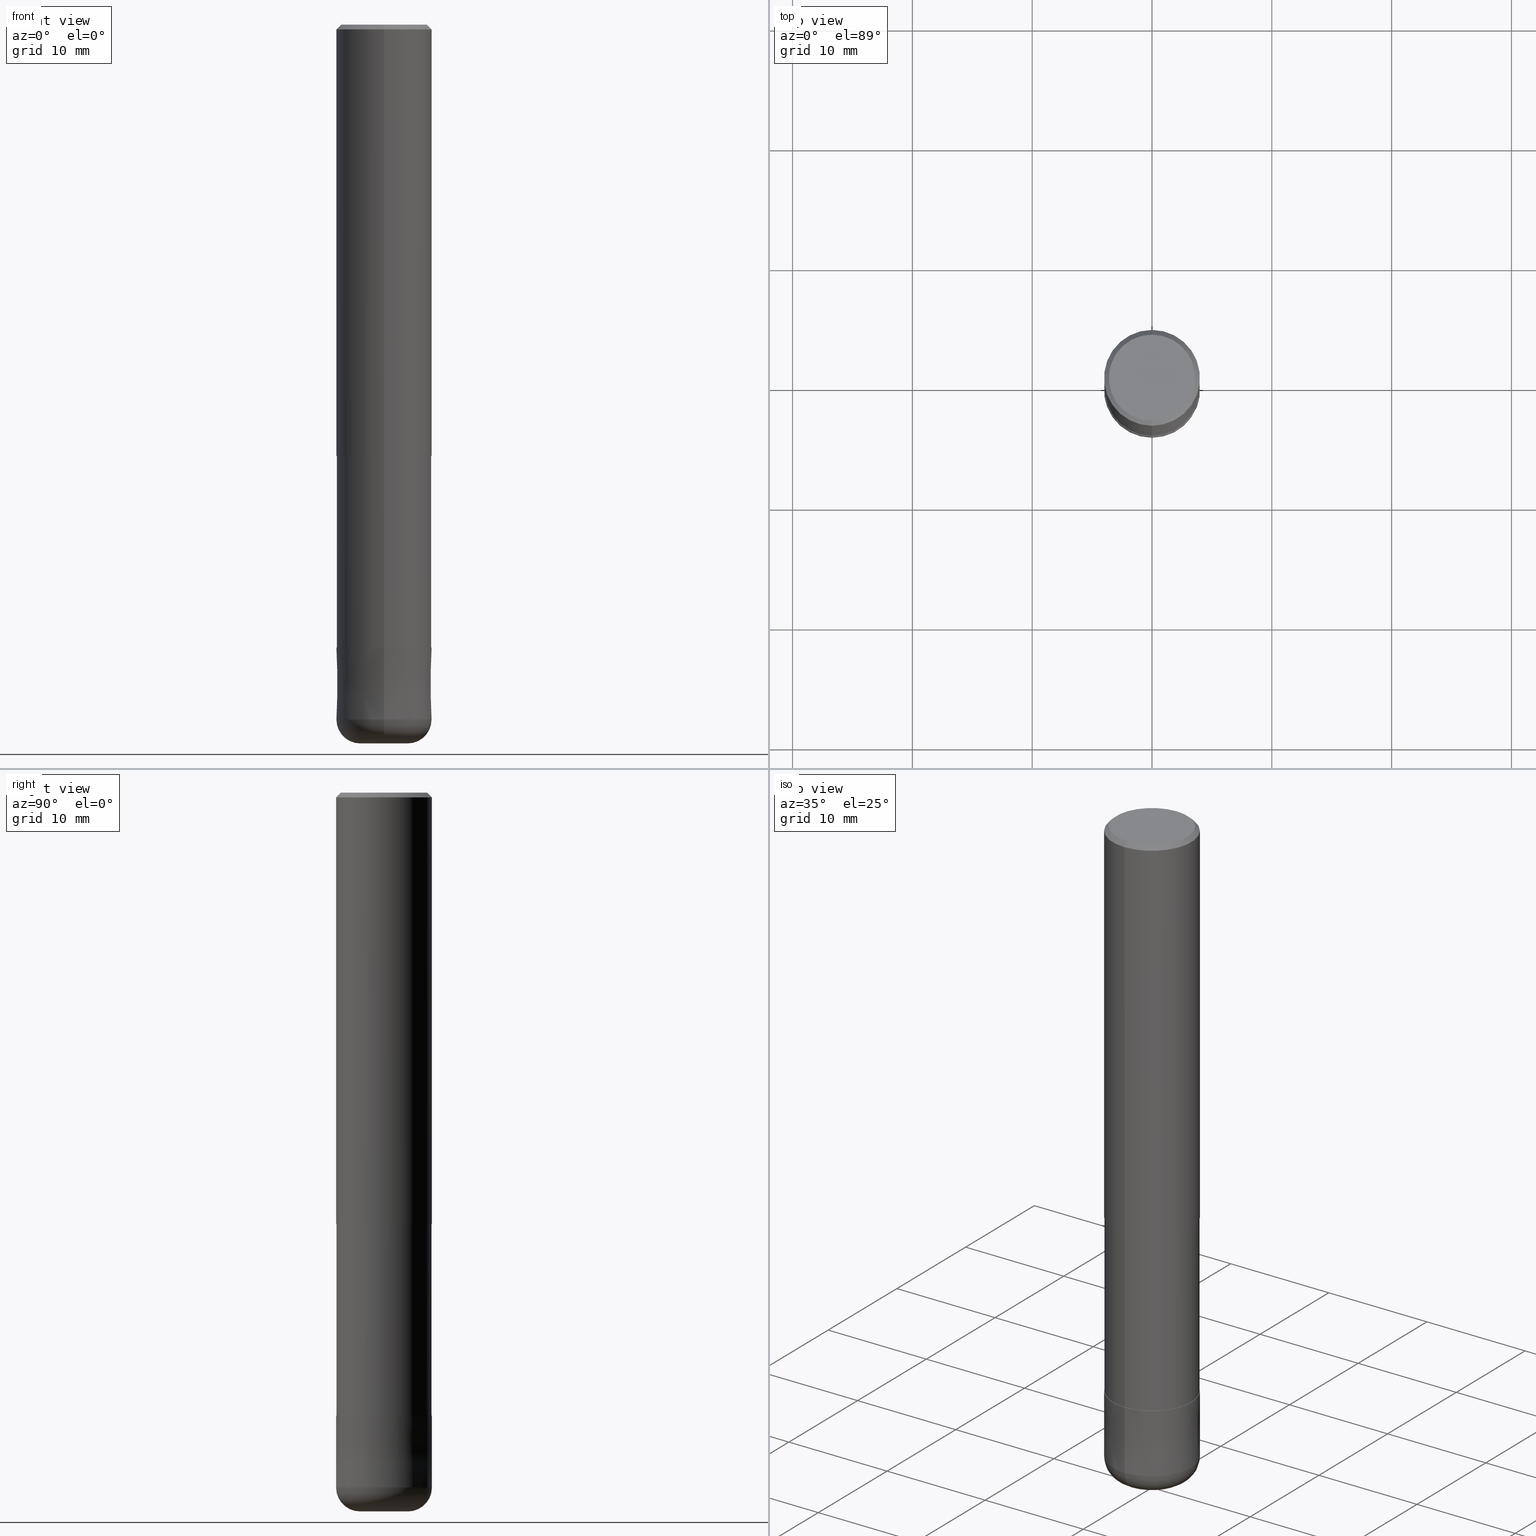
[diagram: canonical four-view strip — front | top / right | iso, engineering-drawing reading convention]
A machine part, canonical four-view strip (front | top / right | iso — engineering-drawing reading convention). The complete STEP part file that produces these views, byte-faithful:
ISO-10303-21;
HEADER;
FILE_DESCRIPTION(('no description'),'unknown implementation level');
FILE_NAME('HRRS4080-20-24S-Huellk.stp','  ',('CIMSOURCE GmbH'),('CADClick - KiM GmbH - www.kimweb.de'),'unknown preprocess','ACIS','unknown authorization');
FILE_SCHEMA(('automotive_design'));
ENDSEC;
DATA;
#1=MECHANICAL_DESIGN_GEOMETRIC_PRESENTATION_REPRESENTATION(' ',(#14,#15,#16,#17,#18,#19,#20,#21,#22,#23,#24,#25,#26,#27,#28,#29,#30,#31,#32,#33,#34,#35,#36,#37,#38,#39,#40,#41,#42,#43,#44,#45,#46,#47,#48,#49,#50,#51,#52,#53,#54,#55,#56,#57,#58,#59,#60,#61,#62,#63,#64,#65,#66,#67,#68,#69,#70,#71,#72),#10);
#2=PRODUCT_DEFINITION_CONTEXT('',#73,'design');
#3=APPLICATION_PROTOCOL_DEFINITION('INTERNATIONAL STANDARD','automotive_design',1994,#73);
#4=PRODUCT_CATEGORY_RELATIONSHIP('NONE','NONE',#74,#75);
#5=SHAPE_DEFINITION_REPRESENTATION(#76,#77);
#6=PRODUCT_DEFINITION_CONTEXT('',#78,'design');
#7=APPLICATION_PROTOCOL_DEFINITION('INTERNATIONAL STANDARD','automotive_design',1994,#78);
#8=PRODUCT_CATEGORY_RELATIONSHIP('NONE','NONE',#79,#80);
#9=SHAPE_DEFINITION_REPRESENTATION(#81,#82);
#10= (GEOMETRIC_REPRESENTATION_CONTEXT(3)GLOBAL_UNCERTAINTY_ASSIGNED_CONTEXT((#85))GLOBAL_UNIT_ASSIGNED_CONTEXT((#87,#88,#89))REPRESENTATION_CONTEXT('NONE','WORKSPACE'));
#14=STYLED_ITEM('',(#91),#92);
#15=STYLED_ITEM('',(#93),#94);
#16=STYLED_ITEM('',(#95),#96);
#17=STYLED_ITEM('',(#97),#98);
#18=STYLED_ITEM('',(#99),#100);
#19=STYLED_ITEM('',(#101),#102);
#20=STYLED_ITEM('',(#103),#104);
#21=STYLED_ITEM('',(#105),#106);
#22=STYLED_ITEM('',(#107),#108);
#23=STYLED_ITEM('',(#109),#110);
#24=STYLED_ITEM('',(#111),#112);
#25=STYLED_ITEM('',(#113),#114);
#26=STYLED_ITEM('',(#115),#116);
#27=STYLED_ITEM('',(#117),#118);
#28=STYLED_ITEM('',(#119),#120);
#29=STYLED_ITEM('',(#121),#122);
#30=STYLED_ITEM('',(#123),#124);
#31=STYLED_ITEM('',(#125),#126);
#32=STYLED_ITEM('',(#127),#128);
#33=STYLED_ITEM('',(#129),#130);
#34=STYLED_ITEM('',(#131),#132);
#35=STYLED_ITEM('',(#133),#134);
#36=STYLED_ITEM('',(#135),#136);
#37=STYLED_ITEM('',(#137),#138);
#38=STYLED_ITEM('',(#139),#140);
#39=STYLED_ITEM('',(#141),#142);
#40=STYLED_ITEM('',(#143),#144);
#41=STYLED_ITEM('',(#145),#146);
#42=STYLED_ITEM('',(#147),#148);
#43=STYLED_ITEM('',(#149),#150);
#44=STYLED_ITEM('',(#151),#152);
#45=STYLED_ITEM('',(#153),#154);
#46=STYLED_ITEM('',(#155),#156);
#47=STYLED_ITEM('',(#157),#158);
#48=STYLED_ITEM('',(#159),#160);
#49=STYLED_ITEM('',(#161),#162);
#50=STYLED_ITEM('',(#163),#164);
#51=STYLED_ITEM('',(#165),#166);
#52=STYLED_ITEM('',(#167),#168);
#53=STYLED_ITEM('',(#169),#170);
#54=STYLED_ITEM('',(#171),#172);
#55=STYLED_ITEM('',(#173),#174);
#56=STYLED_ITEM('',(#175),#176);
#57=STYLED_ITEM('',(#177),#178);
#58=STYLED_ITEM('',(#179),#180);
#59=STYLED_ITEM('',(#181),#182);
#60=STYLED_ITEM('',(#183),#184);
#61=STYLED_ITEM('',(#185),#186);
#62=STYLED_ITEM('',(#187),#188);
#63=STYLED_ITEM('',(#189),#190);
#64=STYLED_ITEM('',(#191),#192);
#65=STYLED_ITEM('',(#193),#194);
#66=STYLED_ITEM('',(#195),#196);
#67=STYLED_ITEM('',(#197),#198);
#68=STYLED_ITEM('',(#199),#200);
#69=STYLED_ITEM('',(#201),#202);
#70=STYLED_ITEM('',(#203),#204);
#71=STYLED_ITEM('',(#205),#206);
#72=STYLED_ITEM('',(#207),#208);
#73=APPLICATION_CONTEXT(' ');
#74=PRODUCT_CATEGORY('part','NONE');
#75=PRODUCT_RELATED_PRODUCT_CATEGORY('detail',' ',(#209));
#76=PRODUCT_DEFINITION_SHAPE('NONE','NONE',#210);
#77=ADVANCED_BREP_SHAPE_REPRESENTATION('1',(#172,#211),#10);
#78=APPLICATION_CONTEXT(' ');
#79=PRODUCT_CATEGORY('part','NONE');
#80=PRODUCT_RELATED_PRODUCT_CATEGORY('detail',' ',(#212));
#81=PRODUCT_DEFINITION_SHAPE('NONE','NONE',#213);
#82=ADVANCED_BREP_SHAPE_REPRESENTATION('2',(#208,#214),#10);
#85=UNCERTAINTY_MEASURE_WITH_UNIT(LENGTH_MEASURE(1.0E-006),#87,'','');
#87= (CONVERSION_BASED_UNIT('MILLIMETRE',#217)LENGTH_UNIT()NAMED_UNIT(#220));
#88= (NAMED_UNIT(#222)PLANE_ANGLE_UNIT()SI_UNIT($,.RADIAN.));
#89= (NAMED_UNIT(#222)SOLID_ANGLE_UNIT()SI_UNIT($,.STERADIAN.));
#91=PRESENTATION_STYLE_ASSIGNMENT((#228));
#92=ADVANCED_FACE('',(#229),#230,.T.);
#93=PRESENTATION_STYLE_ASSIGNMENT((#231));
#94=EDGE_CURVE('',#202,#114,#232,.T.);
#95=PRESENTATION_STYLE_ASSIGNMENT((#233));
#96=ADVANCED_FACE('',(#234),#235,.T.);
#97=PRESENTATION_STYLE_ASSIGNMENT((#236));
#98=ADVANCED_FACE('',(#237,#238),#239,.T.);
#99=PRESENTATION_STYLE_ASSIGNMENT((#240));
#100=VERTEX_POINT('',#241);
#101=PRESENTATION_STYLE_ASSIGNMENT((#242));
#102=VERTEX_POINT('',#243);
#103=PRESENTATION_STYLE_ASSIGNMENT((#244));
#104=VERTEX_POINT('',#245);
#105=PRESENTATION_STYLE_ASSIGNMENT((#246));
#106=EDGE_CURVE('',#138,#150,#247,.T.);
#107=PRESENTATION_STYLE_ASSIGNMENT((#248));
#108=ADVANCED_FACE('',(#249),#250,.T.);
#109=PRESENTATION_STYLE_ASSIGNMENT((#251));
#110=VERTEX_POINT('',#252);
#111=PRESENTATION_STYLE_ASSIGNMENT((#253));
#112=VERTEX_POINT('',#254);
#113=PRESENTATION_STYLE_ASSIGNMENT((#255));
#114=VERTEX_POINT('',#256);
#115=PRESENTATION_STYLE_ASSIGNMENT((#257));
#116=EDGE_CURVE('',#168,#102,#258,.T.);
#117=PRESENTATION_STYLE_ASSIGNMENT((#259));
#118=VERTEX_POINT('',#260);
#119=PRESENTATION_STYLE_ASSIGNMENT((#261));
#120=EDGE_CURVE('',#206,#202,#262,.T.);
#121=PRESENTATION_STYLE_ASSIGNMENT((#263));
#122=ADVANCED_FACE('',(#264),#265,.T.);
#123=PRESENTATION_STYLE_ASSIGNMENT((#266));
#124=EDGE_CURVE('',#100,#164,#267,.T.);
#125=PRESENTATION_STYLE_ASSIGNMENT((#268));
#126=EDGE_CURVE('',#170,#110,#269,.T.);
#127=PRESENTATION_STYLE_ASSIGNMENT((#270));
#128=EDGE_CURVE('',#102,#168,#271,.T.);
#129=PRESENTATION_STYLE_ASSIGNMENT((#272));
#130=EDGE_CURVE('',#152,#118,#273,.T.);
#131=PRESENTATION_STYLE_ASSIGNMENT((#274));
#132=EDGE_CURVE('',#202,#206,#275,.T.);
#133=PRESENTATION_STYLE_ASSIGNMENT((#276));
#134=ADVANCED_FACE('',(#277),#278,.T.);
#135=PRESENTATION_STYLE_ASSIGNMENT((#279));
#136=EDGE_CURVE('',#112,#104,#280,.T.);
#137=PRESENTATION_STYLE_ASSIGNMENT((#281));
#138=VERTEX_POINT('',#282);
#139=PRESENTATION_STYLE_ASSIGNMENT((#283));
#140=EDGE_CURVE('',#144,#114,#284,.T.);
#141=PRESENTATION_STYLE_ASSIGNMENT((#285));
#142=EDGE_CURVE('',#118,#110,#286,.T.);
#143=PRESENTATION_STYLE_ASSIGNMENT((#287));
#144=VERTEX_POINT('',#288);
#145=PRESENTATION_STYLE_ASSIGNMENT((#289));
#146=EDGE_CURVE('',#144,#206,#290,.T.);
#147=PRESENTATION_STYLE_ASSIGNMENT((#291));
#148=ADVANCED_FACE('',(#292),#293,.T.);
#149=PRESENTATION_STYLE_ASSIGNMENT((#294));
#150=VERTEX_POINT('',#295);
#151=PRESENTATION_STYLE_ASSIGNMENT((#296));
#152=VERTEX_POINT('',#297);
#153=PRESENTATION_STYLE_ASSIGNMENT((#298));
#154=EDGE_CURVE('',#110,#138,#299,.T.);
#155=PRESENTATION_STYLE_ASSIGNMENT((#300));
#156=EDGE_CURVE('',#104,#112,#301,.T.);
#157=PRESENTATION_STYLE_ASSIGNMENT((#302));
#158=ADVANCED_FACE('',(#303),#304,.T.);
#159=PRESENTATION_STYLE_ASSIGNMENT((#305));
#160=ADVANCED_FACE('',(#306),#307,.T.);
#161=PRESENTATION_STYLE_ASSIGNMENT((#308));
#162=EDGE_CURVE('',#150,#138,#309,.T.);
#163=PRESENTATION_STYLE_ASSIGNMENT((#310));
#164=VERTEX_POINT('',#311);
#165=PRESENTATION_STYLE_ASSIGNMENT((#312));
#166=ADVANCED_FACE('',(#313),#314,.T.);
#167=PRESENTATION_STYLE_ASSIGNMENT((#315));
#168=VERTEX_POINT('',#316);
#169=PRESENTATION_STYLE_ASSIGNMENT((#317));
#170=VERTEX_POINT('',#318);
#171=PRESENTATION_STYLE_ASSIGNMENT((#319));
#172=MANIFOLD_SOLID_BREP('1',#320);
#173=PRESENTATION_STYLE_ASSIGNMENT((#321));
#174=EDGE_CURVE('',#114,#144,#322,.T.);
#175=PRESENTATION_STYLE_ASSIGNMENT((#323));
#176=ADVANCED_FACE('',(#324),#325,.T.);
#177=PRESENTATION_STYLE_ASSIGNMENT((#326));
#178=EDGE_CURVE('',#110,#170,#327,.T.);
#179=PRESENTATION_STYLE_ASSIGNMENT((#328));
#180=EDGE_CURVE('',#170,#152,#329,.T.);
#181=PRESENTATION_STYLE_ASSIGNMENT((#330));
#182=EDGE_CURVE('',#100,#168,#331,.T.);
#183=PRESENTATION_STYLE_ASSIGNMENT((#332));
#184=ADVANCED_FACE('',(#333),#334,.T.);
#185=PRESENTATION_STYLE_ASSIGNMENT((#335));
#186=EDGE_CURVE('',#164,#100,#336,.T.);
#187=PRESENTATION_STYLE_ASSIGNMENT((#337));
#188=ADVANCED_FACE('',(#338),#339,.T.);
#189=PRESENTATION_STYLE_ASSIGNMENT((#340));
#190=EDGE_CURVE('',#104,#114,#341,.T.);
#191=PRESENTATION_STYLE_ASSIGNMENT((#342));
#192=ADVANCED_FACE('',(#343),#344,.T.);
#193=PRESENTATION_STYLE_ASSIGNMENT((#345));
#194=ADVANCED_FACE('',(#346),#347,.T.);
#195=PRESENTATION_STYLE_ASSIGNMENT((#348));
#196=EDGE_CURVE('',#102,#164,#349,.T.);
#197=PRESENTATION_STYLE_ASSIGNMENT((#350));
#198=EDGE_CURVE('',#150,#170,#351,.T.);
#199=PRESENTATION_STYLE_ASSIGNMENT((#352));
#200=EDGE_CURVE('',#118,#152,#353,.T.);
#201=PRESENTATION_STYLE_ASSIGNMENT((#354));
#202=VERTEX_POINT('',#355);
#203=PRESENTATION_STYLE_ASSIGNMENT((#356));
#204=EDGE_CURVE('',#144,#112,#357,.T.);
#205=PRESENTATION_STYLE_ASSIGNMENT((#358));
#206=VERTEX_POINT('',#359);
#207=PRESENTATION_STYLE_ASSIGNMENT((#360));
#208=MANIFOLD_SOLID_BREP('2',#361);
#209=PRODUCT('1','1','PART-1-DESC',(#362));
#210=PRODUCT_DEFINITION('NONE','NONE',#363,#2);
#211=AXIS2_PLACEMENT_3D('',#364,#365,#366);
#212=PRODUCT('2','2','PART-2-DESC',(#367));
#213=PRODUCT_DEFINITION('NONE','NONE',#368,#6);
#214=AXIS2_PLACEMENT_3D('',#369,#370,#371);
#217=LENGTH_MEASURE_WITH_UNIT(LENGTH_MEASURE(1.0),#372);
#220=DIMENSIONAL_EXPONENTS(1.0,0.0,0.0,0.0,0.0,0.0,0.0);
#222=DIMENSIONAL_EXPONENTS(0.0,0.0,0.0,0.0,0.0,0.0,0.0);
#228=SURFACE_STYLE_USAGE(.BOTH.,#373);
#229=FACE_OUTER_BOUND('',#374,.T.);
#230=CONICAL_SURFACE('',#375,3.8,0.78539816339745);
#231=CURVE_STYLE('',#376,POSITIVE_LENGTH_MEASURE(1.0E-006),#377);
#232=LINE('',#378,#379);
#233=SURFACE_STYLE_USAGE(.BOTH.,#380);
#234=FACE_OUTER_BOUND('',#381,.T.);
#235=CONICAL_SURFACE('',#382,3.99995,1.66666666651586E-005);
#236=SURFACE_STYLE_USAGE(.BOTH.,#383);
#237=FACE_OUTER_BOUND('',#384,.T.);
#238=FACE_BOUND('',#385,.T.);
#239=PLANE('',#386);
#240=POINT_STYLE(' ',#387,POSITIVE_LENGTH_MEASURE(1.0E-006),#388);
#241=CARTESIAN_POINT('',(0.0,3.95995,-36.0));
#242=POINT_STYLE(' ',#389,POSITIVE_LENGTH_MEASURE(1.0E-006),#390);
#243=CARTESIAN_POINT('',(4.84937993081892E-016,-3.95995,-52.0));
#244=POINT_STYLE(' ',#391,POSITIVE_LENGTH_MEASURE(1.0E-006),#392);
#245=CARTESIAN_POINT('',(0.0,2.0,-60.0));
#246=CURVE_STYLE('',#393,POSITIVE_LENGTH_MEASURE(1.0E-006),#394);
#247=CIRCLE('',#395,3.6);
#248=SURFACE_STYLE_USAGE(.BOTH.,#396);
#249=FACE_OUTER_BOUND('',#397,.T.);
#250=CYLINDRICAL_SURFACE('',#398,3.95995);
#251=POINT_STYLE(' ',#399,POSITIVE_LENGTH_MEASURE(1.0E-006),#400);
#252=CARTESIAN_POINT('',(4.89842541528951E-016,-4.0,-0.399999999999999));
#253=POINT_STYLE(' ',#401,POSITIVE_LENGTH_MEASURE(1.0E-006),#402);
#254=CARTESIAN_POINT('',(2.44921270764475E-016,-2.0,-60.0));
#255=POINT_STYLE(' ',#403,POSITIVE_LENGTH_MEASURE(1.0E-006),#404);
#256=CARTESIAN_POINT('',(0.0,4.0,-58.0));
#257=CURVE_STYLE('',#405,POSITIVE_LENGTH_MEASURE(1.0E-006),#406);
#258=CIRCLE('',#407,3.95995);
#259=POINT_STYLE(' ',#408,POSITIVE_LENGTH_MEASURE(1.0E-006),#409);
#260=CARTESIAN_POINT('',(4.89842541528951E-016,-4.0,-36.0));
#261=CURVE_STYLE('',#410,POSITIVE_LENGTH_MEASURE(1.0E-006),#411);
#262=CIRCLE('',#412,3.9999);
#263=SURFACE_STYLE_USAGE(.BOTH.,#413);
#264=FACE_OUTER_BOUND('',#414,.T.);
#265=TOROIDAL_SURFACE('',#415,2.0,2.0);
#266=CURVE_STYLE('',#416,POSITIVE_LENGTH_MEASURE(1.0E-006),#417);
#267=CIRCLE('',#418,3.95995);
#268=CURVE_STYLE('',#419,POSITIVE_LENGTH_MEASURE(1.0E-006),#420);
#269=CIRCLE('',#421,4.0);
#270=CURVE_STYLE('',#422,POSITIVE_LENGTH_MEASURE(1.0E-006),#423);
#271=CIRCLE('',#424,3.95995);
#272=CURVE_STYLE('',#425,POSITIVE_LENGTH_MEASURE(1.0E-006),#426);
#273=CIRCLE('',#427,4.0);
#274=CURVE_STYLE('',#428,POSITIVE_LENGTH_MEASURE(1.0E-006),#429);
#275=CIRCLE('',#430,3.9999);
#276=SURFACE_STYLE_USAGE(.BOTH.,#431);
#277=FACE_OUTER_BOUND('',#432,.T.);
#278=CYLINDRICAL_SURFACE('',#433,4.0);
#279=CURVE_STYLE('',#434,POSITIVE_LENGTH_MEASURE(1.0E-006),#435);
#280=CIRCLE('',#436,2.0);
#281=POINT_STYLE(' ',#437,POSITIVE_LENGTH_MEASURE(1.0E-006),#438);
#282=CARTESIAN_POINT('',(4.40858287376056E-016,-3.6,0.0));
#283=CURVE_STYLE('',#439,POSITIVE_LENGTH_MEASURE(1.0E-006),#440);
#284=CIRCLE('',#441,4.0);
#285=CURVE_STYLE('',#442,POSITIVE_LENGTH_MEASURE(1.0E-006),#443);
#286=LINE('',#444,#445);
#287=POINT_STYLE(' ',#446,POSITIVE_LENGTH_MEASURE(1.0E-006),#447);
#288=CARTESIAN_POINT('',(4.89842541528951E-016,-4.0,-58.0));
#289=CURVE_STYLE('',#448,POSITIVE_LENGTH_MEASURE(1.0E-006),#449);
#290=LINE('',#450,#451);
#291=SURFACE_STYLE_USAGE(.BOTH.,#452);
#292=FACE_OUTER_BOUND('',#453,.T.);
#293=PLANE('',#454);
#294=POINT_STYLE(' ',#455,POSITIVE_LENGTH_MEASURE(1.0E-006),#456);
#295=CARTESIAN_POINT('',(0.0,3.6,0.0));
#296=POINT_STYLE(' ',#457,POSITIVE_LENGTH_MEASURE(1.0E-006),#458);
#297=CARTESIAN_POINT('',(0.0,4.0,-36.0));
#298=CURVE_STYLE('',#459,POSITIVE_LENGTH_MEASURE(1.0E-006),#460);
#299=LINE('',#461,#462);
#300=CURVE_STYLE('',#463,POSITIVE_LENGTH_MEASURE(1.0E-006),#464);
#301=CIRCLE('',#465,2.0);
#302=SURFACE_STYLE_USAGE(.BOTH.,#466);
#303=FACE_OUTER_BOUND('',#467,.T.);
#304=CYLINDRICAL_SURFACE('',#468,3.95995);
#305=SURFACE_STYLE_USAGE(.BOTH.,#469);
#306=FACE_OUTER_BOUND('',#470,.T.);
#307=CYLINDRICAL_SURFACE('',#471,4.0);
#308=CURVE_STYLE('',#472,POSITIVE_LENGTH_MEASURE(1.0E-006),#473);
#309=CIRCLE('',#474,3.6);
#310=POINT_STYLE(' ',#475,POSITIVE_LENGTH_MEASURE(1.0E-006),#476);
#311=CARTESIAN_POINT('',(4.84937993081892E-016,-3.95995,-36.0));
#312=SURFACE_STYLE_USAGE(.BOTH.,#477);
#313=FACE_OUTER_BOUND('',#478,.T.);
#314=TOROIDAL_SURFACE('',#479,2.0,2.0);
#315=POINT_STYLE(' ',#480,POSITIVE_LENGTH_MEASURE(1.0E-006),#481);
#316=CARTESIAN_POINT('',(0.0,3.95995,-52.0));
#317=POINT_STYLE(' ',#482,POSITIVE_LENGTH_MEASURE(1.0E-006),#483);
#318=CARTESIAN_POINT('',(0.0,4.0,-0.399999999999999));
#319=SURFACE_STYLE_USAGE(.BOTH.,#484);
#320=CLOSED_SHELL('',(#108,#134,#184,#98,#192,#92,#160,#158,#194));
#321=CURVE_STYLE('',#485,POSITIVE_LENGTH_MEASURE(1.0E-006),#486);
#322=CIRCLE('',#487,4.0);
#323=SURFACE_STYLE_USAGE(.BOTH.,#488);
#324=FACE_OUTER_BOUND('',#489,.T.);
#325=CONICAL_SURFACE('',#490,3.99995,1.66666666651586E-005);
#326=CURVE_STYLE('',#491,POSITIVE_LENGTH_MEASURE(1.0E-006),#492);
#327=CIRCLE('',#493,4.0);
#328=CURVE_STYLE('',#494,POSITIVE_LENGTH_MEASURE(1.0E-006),#495);
#329=LINE('',#496,#497);
#330=CURVE_STYLE('',#498,POSITIVE_LENGTH_MEASURE(1.0E-006),#499);
#331=LINE('',#500,#501);
#332=SURFACE_STYLE_USAGE(.BOTH.,#502);
#333=FACE_OUTER_BOUND('',#503,.T.);
#334=CONICAL_SURFACE('',#504,3.8,0.78539816339745);
#335=CURVE_STYLE('',#505,POSITIVE_LENGTH_MEASURE(1.0E-006),#506);
#336=CIRCLE('',#507,3.95995);
#337=SURFACE_STYLE_USAGE(.BOTH.,#508);
#338=FACE_OUTER_BOUND('',#509,.T.);
#339=PLANE('',#510);
#340=CURVE_STYLE('',#511,POSITIVE_LENGTH_MEASURE(1.0E-006),#512);
#341=CIRCLE('',#513,2.0);
#342=SURFACE_STYLE_USAGE(.BOTH.,#514);
#343=FACE_OUTER_BOUND('',#515,.T.);
#344=PLANE('',#516);
#345=SURFACE_STYLE_USAGE(.BOTH.,#517);
#346=FACE_OUTER_BOUND('',#518,.T.);
#347=PLANE('',#519);
#348=CURVE_STYLE('',#520,POSITIVE_LENGTH_MEASURE(1.0E-006),#521);
#349=LINE('',#522,#523);
#350=CURVE_STYLE('',#524,POSITIVE_LENGTH_MEASURE(1.0E-006),#525);
#351=LINE('',#526,#527);
#352=CURVE_STYLE('',#528,POSITIVE_LENGTH_MEASURE(1.0E-006),#529);
#353=CIRCLE('',#530,4.0);
#354=POINT_STYLE(' ',#531,POSITIVE_LENGTH_MEASURE(1.0E-006),#532);
#355=CARTESIAN_POINT('',(0.0,3.9999,-52.0));
#356=CURVE_STYLE('',#533,POSITIVE_LENGTH_MEASURE(1.0E-006),#534);
#357=CIRCLE('',#535,2.0);
#358=POINT_STYLE(' ',#536,POSITIVE_LENGTH_MEASURE(1.0E-006),#537);
#359=CARTESIAN_POINT('',(4.89830295465413E-016,-3.9999,-52.0));
#360=SURFACE_STYLE_USAGE(.BOTH.,#538);
#361=CLOSED_SHELL('',(#166,#176,#148,#96,#122,#188));
#362=PRODUCT_CONTEXT('',#73,'mechanical');
#363=PRODUCT_DEFINITION_FORMATION_WITH_SPECIFIED_SOURCE(' ','NONE',#209,.NOT_KNOWN.);
#364=CARTESIAN_POINT('',(0.0,0.0,0.0));
#365=DIRECTION('',(0.0,0.0,1.0));
#366=DIRECTION('',(1.0,0.0,0.0));
#367=PRODUCT_CONTEXT('',#78,'mechanical');
#368=PRODUCT_DEFINITION_FORMATION_WITH_SPECIFIED_SOURCE(' ','NONE',#212,.NOT_KNOWN.);
#369=CARTESIAN_POINT('',(0.0,0.0,0.0));
#370=DIRECTION('',(0.0,0.0,1.0));
#371=DIRECTION('',(1.0,0.0,0.0));
#372= (NAMED_UNIT(#220)LENGTH_UNIT()SI_UNIT(.MILLI.,.METRE.));
#373=SURFACE_SIDE_STYLE('',(#540));
#374=EDGE_LOOP('',(#541,#542,#543,#544));
#375=AXIS2_PLACEMENT_3D('',#545,#546,#547);
#376=DRAUGHTING_PRE_DEFINED_CURVE_FONT('continuous');
#377=COLOUR_RGB('',0.800000011920929,0.800000011920929,0.800000011920929);
#378=CARTESIAN_POINT('',(-4.89836418497182E-016,3.99995,-55.0));
#379=VECTOR('',#548,1.0);
#380=SURFACE_SIDE_STYLE('',(#549));
#381=EDGE_LOOP('',(#550,#551,#552,#553));
#382=AXIS2_PLACEMENT_3D('',#554,#555,#556);
#383=SURFACE_SIDE_STYLE('',(#557));
#384=EDGE_LOOP('',(#558,#559));
#385=EDGE_LOOP('',(#560,#561));
#386=AXIS2_PLACEMENT_3D('',#562,#563,#564);
#387=PRE_DEFINED_MARKER('');
#388=COLOUR_RGB('',0.498039215803146,0.498039215803146,0.498039215803146);
#389=PRE_DEFINED_MARKER('');
#390=COLOUR_RGB('',0.498039215803146,0.498039215803146,0.498039215803146);
#391=PRE_DEFINED_MARKER('');
#392=COLOUR_RGB('',0.800000011920929,0.800000011920929,0.800000011920929);
#393=DRAUGHTING_PRE_DEFINED_CURVE_FONT('continuous');
#394=COLOUR_RGB('',0.498039215803146,0.498039215803146,0.498039215803146);
#395=AXIS2_PLACEMENT_3D('',#565,#566,#567);
#396=SURFACE_SIDE_STYLE('',(#568));
#397=EDGE_LOOP('',(#569,#570,#571,#572));
#398=AXIS2_PLACEMENT_3D('',#573,#574,#575);
#399=PRE_DEFINED_MARKER('');
#400=COLOUR_RGB('',0.498039215803146,0.498039215803146,0.498039215803146);
#401=PRE_DEFINED_MARKER('');
#402=COLOUR_RGB('',0.800000011920929,0.800000011920929,0.800000011920929);
#403=PRE_DEFINED_MARKER('');
#404=COLOUR_RGB('',0.800000011920929,0.800000011920929,0.800000011920929);
#405=DRAUGHTING_PRE_DEFINED_CURVE_FONT('continuous');
#406=COLOUR_RGB('',0.498039215803146,0.498039215803146,0.498039215803146);
#407=AXIS2_PLACEMENT_3D('',#576,#577,#578);
#408=PRE_DEFINED_MARKER('');
#409=COLOUR_RGB('',0.498039215803146,0.498039215803146,0.498039215803146);
#410=DRAUGHTING_PRE_DEFINED_CURVE_FONT('continuous');
#411=COLOUR_RGB('',0.800000011920929,0.800000011920929,0.800000011920929);
#412=AXIS2_PLACEMENT_3D('',#579,#580,#581);
#413=SURFACE_SIDE_STYLE('',(#582));
#414=EDGE_LOOP('',(#583,#584,#585,#586));
#415=AXIS2_PLACEMENT_3D('',#587,#588,#589);
#416=DRAUGHTING_PRE_DEFINED_CURVE_FONT('continuous');
#417=COLOUR_RGB('',0.498039215803146,0.498039215803146,0.498039215803146);
#418=AXIS2_PLACEMENT_3D('',#590,#591,#592);
#419=DRAUGHTING_PRE_DEFINED_CURVE_FONT('continuous');
#420=COLOUR_RGB('',0.498039215803146,0.498039215803146,0.498039215803146);
#421=AXIS2_PLACEMENT_3D('',#593,#594,#595);
#422=DRAUGHTING_PRE_DEFINED_CURVE_FONT('continuous');
#423=COLOUR_RGB('',0.498039215803146,0.498039215803146,0.498039215803146);
#424=AXIS2_PLACEMENT_3D('',#596,#597,#598);
#425=DRAUGHTING_PRE_DEFINED_CURVE_FONT('continuous');
#426=COLOUR_RGB('',0.498039215803146,0.498039215803146,0.498039215803146);
#427=AXIS2_PLACEMENT_3D('',#599,#600,#601);
#428=DRAUGHTING_PRE_DEFINED_CURVE_FONT('continuous');
#429=COLOUR_RGB('',0.800000011920929,0.800000011920929,0.800000011920929);
#430=AXIS2_PLACEMENT_3D('',#602,#603,#604);
#431=SURFACE_SIDE_STYLE('',(#605));
#432=EDGE_LOOP('',(#606,#607,#608,#609));
#433=AXIS2_PLACEMENT_3D('',#610,#611,#612);
#434=DRAUGHTING_PRE_DEFINED_CURVE_FONT('continuous');
#435=COLOUR_RGB('',0.800000011920929,0.800000011920929,0.800000011920929);
#436=AXIS2_PLACEMENT_3D('',#613,#614,#615);
#437=PRE_DEFINED_MARKER('');
#438=COLOUR_RGB('',0.498039215803146,0.498039215803146,0.498039215803146);
#439=DRAUGHTING_PRE_DEFINED_CURVE_FONT('continuous');
#440=COLOUR_RGB('',0.800000011920929,0.800000011920929,0.800000011920929);
#441=AXIS2_PLACEMENT_3D('',#616,#617,#618);
#442=DRAUGHTING_PRE_DEFINED_CURVE_FONT('continuous');
#443=COLOUR_RGB('',0.498039215803146,0.498039215803146,0.498039215803146);
#444=CARTESIAN_POINT('',(4.89842541528951E-016,-4.0,-18.2));
#445=VECTOR('',#619,1.0);
#446=PRE_DEFINED_MARKER('');
#447=COLOUR_RGB('',0.800000011920929,0.800000011920929,0.800000011920929);
#448=DRAUGHTING_PRE_DEFINED_CURVE_FONT('continuous');
#449=COLOUR_RGB('',0.800000011920929,0.800000011920929,0.800000011920929);
#450=CARTESIAN_POINT('',(4.89836418497182E-016,-3.99995,-55.0));
#451=VECTOR('',#620,1.0);
#452=SURFACE_SIDE_STYLE('',(#621));
#453=EDGE_LOOP('',(#622,#623));
#454=AXIS2_PLACEMENT_3D('',#624,#625,#626);
#455=PRE_DEFINED_MARKER('');
#456=COLOUR_RGB('',0.498039215803146,0.498039215803146,0.498039215803146);
#457=PRE_DEFINED_MARKER('');
#458=COLOUR_RGB('',0.498039215803146,0.498039215803146,0.498039215803146);
#459=DRAUGHTING_PRE_DEFINED_CURVE_FONT('continuous');
#460=COLOUR_RGB('',0.498039215803146,0.498039215803146,0.498039215803146);
#461=CARTESIAN_POINT('',(4.65350414452503E-016,-3.8,-0.199999999999996));
#462=VECTOR('',#627,1.0);
#463=DRAUGHTING_PRE_DEFINED_CURVE_FONT('continuous');
#464=COLOUR_RGB('',0.800000011920929,0.800000011920929,0.800000011920929);
#465=AXIS2_PLACEMENT_3D('',#628,#629,#630);
#466=SURFACE_SIDE_STYLE('',(#631));
#467=EDGE_LOOP('',(#632,#633,#634,#635));
#468=AXIS2_PLACEMENT_3D('',#636,#637,#638);
#469=SURFACE_SIDE_STYLE('',(#639));
#470=EDGE_LOOP('',(#640,#641,#642,#643));
#471=AXIS2_PLACEMENT_3D('',#644,#645,#646);
#472=DRAUGHTING_PRE_DEFINED_CURVE_FONT('continuous');
#473=COLOUR_RGB('',0.498039215803146,0.498039215803146,0.498039215803146);
#474=AXIS2_PLACEMENT_3D('',#647,#648,#649);
#475=PRE_DEFINED_MARKER('');
#476=COLOUR_RGB('',0.498039215803146,0.498039215803146,0.498039215803146);
#477=SURFACE_SIDE_STYLE('',(#650));
#478=EDGE_LOOP('',(#651,#652,#653,#654));
#479=AXIS2_PLACEMENT_3D('',#655,#656,#657);
#480=PRE_DEFINED_MARKER('');
#481=COLOUR_RGB('',0.498039215803146,0.498039215803146,0.498039215803146);
#482=PRE_DEFINED_MARKER('');
#483=COLOUR_RGB('',0.498039215803146,0.498039215803146,0.498039215803146);
#484=SURFACE_SIDE_STYLE('',(#658));
#485=DRAUGHTING_PRE_DEFINED_CURVE_FONT('continuous');
#486=COLOUR_RGB('',0.800000011920929,0.800000011920929,0.800000011920929);
#487=AXIS2_PLACEMENT_3D('',#659,#660,#661);
#488=SURFACE_SIDE_STYLE('',(#662));
#489=EDGE_LOOP('',(#663,#664,#665,#666));
#490=AXIS2_PLACEMENT_3D('',#667,#668,#669);
#491=DRAUGHTING_PRE_DEFINED_CURVE_FONT('continuous');
#492=COLOUR_RGB('',0.498039215803146,0.498039215803146,0.498039215803146);
#493=AXIS2_PLACEMENT_3D('',#670,#671,#672);
#494=DRAUGHTING_PRE_DEFINED_CURVE_FONT('continuous');
#495=COLOUR_RGB('',0.498039215803146,0.498039215803146,0.498039215803146);
#496=CARTESIAN_POINT('',(-4.89842541528951E-016,4.0,-18.2));
#497=VECTOR('',#673,1.0);
#498=DRAUGHTING_PRE_DEFINED_CURVE_FONT('continuous');
#499=COLOUR_RGB('',0.498039215803146,0.498039215803146,0.498039215803146);
#500=CARTESIAN_POINT('',(-4.84937993081892E-016,3.95995,-44.0));
#501=VECTOR('',#674,1.0);
#502=SURFACE_SIDE_STYLE('',(#675));
#503=EDGE_LOOP('',(#676,#677,#678,#679));
#504=AXIS2_PLACEMENT_3D('',#680,#681,#682);
#505=DRAUGHTING_PRE_DEFINED_CURVE_FONT('continuous');
#506=COLOUR_RGB('',0.498039215803146,0.498039215803146,0.498039215803146);
#507=AXIS2_PLACEMENT_3D('',#683,#684,#685);
#508=SURFACE_SIDE_STYLE('',(#686));
#509=EDGE_LOOP('',(#687,#688));
#510=AXIS2_PLACEMENT_3D('',#689,#690,#691);
#511=DRAUGHTING_PRE_DEFINED_CURVE_FONT('continuous');
#512=COLOUR_RGB('',0.800000011920929,0.800000011920929,0.800000011920929);
#513=AXIS2_PLACEMENT_3D('',#692,#693,#694);
#514=SURFACE_SIDE_STYLE('',(#695));
#515=EDGE_LOOP('',(#696,#697));
#516=AXIS2_PLACEMENT_3D('',#698,#699,#700);
#517=SURFACE_SIDE_STYLE('',(#701));
#518=EDGE_LOOP('',(#702,#703));
#519=AXIS2_PLACEMENT_3D('',#704,#705,#706);
#520=DRAUGHTING_PRE_DEFINED_CURVE_FONT('continuous');
#521=COLOUR_RGB('',0.498039215803146,0.498039215803146,0.498039215803146);
#522=CARTESIAN_POINT('',(4.84937993081892E-016,-3.95995,-44.0));
#523=VECTOR('',#707,1.0);
#524=DRAUGHTING_PRE_DEFINED_CURVE_FONT('continuous');
#525=COLOUR_RGB('',0.498039215803146,0.498039215803146,0.498039215803146);
#526=CARTESIAN_POINT('',(-4.65350414452503E-016,3.8,-0.199999999999996));
#527=VECTOR('',#708,1.0);
#528=DRAUGHTING_PRE_DEFINED_CURVE_FONT('continuous');
#529=COLOUR_RGB('',0.498039215803146,0.498039215803146,0.498039215803146);
#530=AXIS2_PLACEMENT_3D('',#709,#710,#711);
#531=PRE_DEFINED_MARKER('');
#532=COLOUR_RGB('',0.800000011920929,0.800000011920929,0.800000011920929);
#533=DRAUGHTING_PRE_DEFINED_CURVE_FONT('continuous');
#534=COLOUR_RGB('',0.800000011920929,0.800000011920929,0.800000011920929);
#535=AXIS2_PLACEMENT_3D('',#712,#713,#714);
#536=PRE_DEFINED_MARKER('');
#537=COLOUR_RGB('',0.800000011920929,0.800000011920929,0.800000011920929);
#538=SURFACE_SIDE_STYLE('',(#715));
#540=SURFACE_STYLE_FILL_AREA(#716);
#541=ORIENTED_EDGE('',*,*,#198,.T.);
#542=ORIENTED_EDGE('',*,*,#178,.F.);
#543=ORIENTED_EDGE('',*,*,#154,.T.);
#544=ORIENTED_EDGE('',*,*,#106,.T.);
#545=CARTESIAN_POINT('',(0.0,0.0,-0.199999999999996));
#546=DIRECTION('',(0.0,-0.0,-1.0));
#547=DIRECTION('',(0.0,1.0,0.0));
#548=DIRECTION('',(-2.04101058942479E-021,1.6666666664387E-005,-0.999999999861111));
#549=SURFACE_STYLE_FILL_AREA(#717);
#550=ORIENTED_EDGE('',*,*,#94,.T.);
#551=ORIENTED_EDGE('',*,*,#140,.F.);
#552=ORIENTED_EDGE('',*,*,#146,.T.);
#553=ORIENTED_EDGE('',*,*,#120,.T.);
#554=CARTESIAN_POINT('',(0.0,0.0,-55.0));
#555=DIRECTION('',(0.0,-0.0,-1.0));
#556=DIRECTION('',(0.0,1.0,0.0));
#557=SURFACE_STYLE_FILL_AREA(#718);
#558=ORIENTED_EDGE('',*,*,#130,.T.);
#559=ORIENTED_EDGE('',*,*,#200,.T.);
#560=ORIENTED_EDGE('',*,*,#124,.F.);
#561=ORIENTED_EDGE('',*,*,#186,.F.);
#562=CARTESIAN_POINT('',(0.0,2.0,-36.0));
#563=DIRECTION('',(0.0,0.0,-1.0));
#564=DIRECTION('',(0.0,1.0,0.0));
#565=CARTESIAN_POINT('',(0.0,0.0,0.0));
#566=DIRECTION('',(0.0,0.0,-1.0));
#567=DIRECTION('',(0.0,1.0,0.0));
#568=SURFACE_STYLE_FILL_AREA(#719);
#569=ORIENTED_EDGE('',*,*,#182,.F.);
#570=ORIENTED_EDGE('',*,*,#124,.T.);
#571=ORIENTED_EDGE('',*,*,#196,.F.);
#572=ORIENTED_EDGE('',*,*,#116,.F.);
#573=CARTESIAN_POINT('',(0.0,0.0,-44.0));
#574=DIRECTION('',(-0.0,-0.0,1.0));
#575=DIRECTION('',(0.0,1.0,0.0));
#576=CARTESIAN_POINT('',(0.0,0.0,-52.0));
#577=DIRECTION('',(0.0,0.0,-1.0));
#578=DIRECTION('',(0.0,1.0,0.0));
#579=CARTESIAN_POINT('',(0.0,0.0,-52.0));
#580=DIRECTION('',(0.0,0.0,-1.0));
#581=DIRECTION('',(0.0,1.0,0.0));
#582=SURFACE_STYLE_FILL_AREA(#720);
#583=ORIENTED_EDGE('',*,*,#204,.T.);
#584=ORIENTED_EDGE('',*,*,#156,.F.);
#585=ORIENTED_EDGE('',*,*,#190,.T.);
#586=ORIENTED_EDGE('',*,*,#174,.T.);
#587=CARTESIAN_POINT('',(0.0,0.0,-58.0));
#588=DIRECTION('',(0.0,0.0,-1.0));
#589=DIRECTION('',(0.0,-1.0,0.0));
#590=CARTESIAN_POINT('',(0.0,0.0,-36.0));
#591=DIRECTION('',(0.0,0.0,-1.0));
#592=DIRECTION('',(0.0,1.0,0.0));
#593=CARTESIAN_POINT('',(0.0,0.0,-0.399999999999999));
#594=DIRECTION('',(0.0,0.0,-1.0));
#595=DIRECTION('',(0.0,1.0,0.0));
#596=CARTESIAN_POINT('',(0.0,0.0,-52.0));
#597=DIRECTION('',(0.0,0.0,-1.0));
#598=DIRECTION('',(0.0,1.0,0.0));
#599=CARTESIAN_POINT('',(0.0,0.0,-36.0));
#600=DIRECTION('',(0.0,0.0,-1.0));
#601=DIRECTION('',(0.0,1.0,0.0));
#602=CARTESIAN_POINT('',(0.0,0.0,-52.0));
#603=DIRECTION('',(0.0,0.0,-1.0));
#604=DIRECTION('',(0.0,1.0,0.0));
#605=SURFACE_STYLE_FILL_AREA(#721);
#606=ORIENTED_EDGE('',*,*,#180,.F.);
#607=ORIENTED_EDGE('',*,*,#126,.T.);
#608=ORIENTED_EDGE('',*,*,#142,.F.);
#609=ORIENTED_EDGE('',*,*,#130,.F.);
#610=CARTESIAN_POINT('',(0.0,0.0,-18.2));
#611=DIRECTION('',(-0.0,-0.0,1.0));
#612=DIRECTION('',(0.0,1.0,0.0));
#613=CARTESIAN_POINT('',(0.0,0.0,-60.0));
#614=DIRECTION('',(0.0,0.0,-1.0));
#615=DIRECTION('',(0.0,1.0,0.0));
#616=CARTESIAN_POINT('',(0.0,0.0,-58.0));
#617=DIRECTION('',(0.0,0.0,-1.0));
#618=DIRECTION('',(0.0,1.0,0.0));
#619=DIRECTION('',(-0.0,-0.0,1.0));
#620=DIRECTION('',(-2.04101058942479E-021,1.6666666664387E-005,0.999999999861111));
#621=SURFACE_STYLE_FILL_AREA(#722);
#622=ORIENTED_EDGE('',*,*,#132,.F.);
#623=ORIENTED_EDGE('',*,*,#120,.F.);
#624=CARTESIAN_POINT('',(0.0,1.99995,-52.0));
#625=DIRECTION('',(-0.0,0.0,1.0));
#626=DIRECTION('',(0.0,-1.0,0.0));
#627=DIRECTION('',(-8.65927457071937E-017,0.707106781186549,0.707106781186546));
#628=CARTESIAN_POINT('',(0.0,0.0,-60.0));
#629=DIRECTION('',(0.0,0.0,-1.0));
#630=DIRECTION('',(0.0,1.0,0.0));
#631=SURFACE_STYLE_FILL_AREA(#723);
#632=ORIENTED_EDGE('',*,*,#182,.T.);
#633=ORIENTED_EDGE('',*,*,#128,.F.);
#634=ORIENTED_EDGE('',*,*,#196,.T.);
#635=ORIENTED_EDGE('',*,*,#186,.T.);
#636=CARTESIAN_POINT('',(0.0,0.0,-44.0));
#637=DIRECTION('',(-0.0,-0.0,1.0));
#638=DIRECTION('',(0.0,1.0,0.0));
#639=SURFACE_STYLE_FILL_AREA(#724);
#640=ORIENTED_EDGE('',*,*,#180,.T.);
#641=ORIENTED_EDGE('',*,*,#200,.F.);
#642=ORIENTED_EDGE('',*,*,#142,.T.);
#643=ORIENTED_EDGE('',*,*,#178,.T.);
#644=CARTESIAN_POINT('',(0.0,0.0,-18.2));
#645=DIRECTION('',(-0.0,-0.0,1.0));
#646=DIRECTION('',(0.0,1.0,0.0));
#647=CARTESIAN_POINT('',(0.0,0.0,0.0));
#648=DIRECTION('',(0.0,0.0,-1.0));
#649=DIRECTION('',(0.0,1.0,0.0));
#650=SURFACE_STYLE_FILL_AREA(#725);
#651=ORIENTED_EDGE('',*,*,#204,.F.);
#652=ORIENTED_EDGE('',*,*,#140,.T.);
#653=ORIENTED_EDGE('',*,*,#190,.F.);
#654=ORIENTED_EDGE('',*,*,#136,.F.);
#655=CARTESIAN_POINT('',(0.0,0.0,-58.0));
#656=DIRECTION('',(0.0,0.0,-1.0));
#657=DIRECTION('',(0.0,-1.0,0.0));
#658=SURFACE_STYLE_FILL_AREA(#726);
#659=CARTESIAN_POINT('',(0.0,0.0,-58.0));
#660=DIRECTION('',(0.0,0.0,-1.0));
#661=DIRECTION('',(0.0,1.0,0.0));
#662=SURFACE_STYLE_FILL_AREA(#727);
#663=ORIENTED_EDGE('',*,*,#94,.F.);
#664=ORIENTED_EDGE('',*,*,#132,.T.);
#665=ORIENTED_EDGE('',*,*,#146,.F.);
#666=ORIENTED_EDGE('',*,*,#174,.F.);
#667=CARTESIAN_POINT('',(0.0,0.0,-55.0));
#668=DIRECTION('',(0.0,-0.0,-1.0));
#669=DIRECTION('',(0.0,1.0,0.0));
#670=CARTESIAN_POINT('',(0.0,0.0,-0.399999999999999));
#671=DIRECTION('',(0.0,0.0,-1.0));
#672=DIRECTION('',(0.0,1.0,0.0));
#673=DIRECTION('',(0.0,0.0,-1.0));
#674=DIRECTION('',(0.0,0.0,-1.0));
#675=SURFACE_STYLE_FILL_AREA(#728);
#676=ORIENTED_EDGE('',*,*,#198,.F.);
#677=ORIENTED_EDGE('',*,*,#162,.T.);
#678=ORIENTED_EDGE('',*,*,#154,.F.);
#679=ORIENTED_EDGE('',*,*,#126,.F.);
#680=CARTESIAN_POINT('',(0.0,0.0,-0.199999999999996));
#681=DIRECTION('',(0.0,-0.0,-1.0));
#682=DIRECTION('',(0.0,1.0,0.0));
#683=CARTESIAN_POINT('',(0.0,0.0,-36.0));
#684=DIRECTION('',(0.0,0.0,-1.0));
#685=DIRECTION('',(0.0,1.0,0.0));
#686=SURFACE_STYLE_FILL_AREA(#729);
#687=ORIENTED_EDGE('',*,*,#156,.T.);
#688=ORIENTED_EDGE('',*,*,#136,.T.);
#689=CARTESIAN_POINT('',(0.0,1.0,-60.0));
#690=DIRECTION('',(0.0,0.0,-1.0));
#691=DIRECTION('',(0.0,1.0,0.0));
#692=CARTESIAN_POINT('',(-2.44921270764475E-016,2.0,-58.0));
#693=DIRECTION('',(1.0,1.22460635382238E-016,0.0));
#694=DIRECTION('',(-1.22460635382238E-016,1.0,0.0));
#695=SURFACE_STYLE_FILL_AREA(#730);
#696=ORIENTED_EDGE('',*,*,#162,.F.);
#697=ORIENTED_EDGE('',*,*,#106,.F.);
#698=CARTESIAN_POINT('',(0.0,1.8,0.0));
#699=DIRECTION('',(-0.0,0.0,1.0));
#700=DIRECTION('',(0.0,-1.0,0.0));
#701=SURFACE_STYLE_FILL_AREA(#731);
#702=ORIENTED_EDGE('',*,*,#116,.T.);
#703=ORIENTED_EDGE('',*,*,#128,.T.);
#704=CARTESIAN_POINT('',(0.0,1.979975,-52.0));
#705=DIRECTION('',(0.0,0.0,-1.0));
#706=DIRECTION('',(0.0,1.0,0.0));
#707=DIRECTION('',(-0.0,-0.0,1.0));
#708=DIRECTION('',(-8.65927457071937E-017,0.707106781186549,-0.707106781186546));
#709=CARTESIAN_POINT('',(0.0,0.0,-36.0));
#710=DIRECTION('',(0.0,0.0,-1.0));
#711=DIRECTION('',(0.0,1.0,0.0));
#712=CARTESIAN_POINT('',(2.44921270764475E-016,-2.0,-58.0));
#713=DIRECTION('',(1.0,1.22460635382238E-016,0.0));
#714=DIRECTION('',(1.22460635382238E-016,-1.0,-0.0));
#715=SURFACE_STYLE_FILL_AREA(#732);
#716=FILL_AREA_STYLE('',(#733));
#717=FILL_AREA_STYLE('',(#734));
#718=FILL_AREA_STYLE('',(#735));
#719=FILL_AREA_STYLE('',(#736));
#720=FILL_AREA_STYLE('',(#737));
#721=FILL_AREA_STYLE('',(#738));
#722=FILL_AREA_STYLE('',(#739));
#723=FILL_AREA_STYLE('',(#740));
#724=FILL_AREA_STYLE('',(#741));
#725=FILL_AREA_STYLE('',(#742));
#726=FILL_AREA_STYLE('',(#743));
#727=FILL_AREA_STYLE('',(#744));
#728=FILL_AREA_STYLE('',(#745));
#729=FILL_AREA_STYLE('',(#746));
#730=FILL_AREA_STYLE('',(#747));
#731=FILL_AREA_STYLE('',(#748));
#732=FILL_AREA_STYLE('',(#749));
#733=FILL_AREA_STYLE_COLOUR('',#750);
#734=FILL_AREA_STYLE_COLOUR('',#751);
#735=FILL_AREA_STYLE_COLOUR('',#752);
#736=FILL_AREA_STYLE_COLOUR('',#753);
#737=FILL_AREA_STYLE_COLOUR('',#754);
#738=FILL_AREA_STYLE_COLOUR('',#755);
#739=FILL_AREA_STYLE_COLOUR('',#756);
#740=FILL_AREA_STYLE_COLOUR('',#757);
#741=FILL_AREA_STYLE_COLOUR('',#758);
#742=FILL_AREA_STYLE_COLOUR('',#759);
#743=FILL_AREA_STYLE_COLOUR('',#760);
#744=FILL_AREA_STYLE_COLOUR('',#761);
#745=FILL_AREA_STYLE_COLOUR('',#762);
#746=FILL_AREA_STYLE_COLOUR('',#763);
#747=FILL_AREA_STYLE_COLOUR('',#764);
#748=FILL_AREA_STYLE_COLOUR('',#765);
#749=FILL_AREA_STYLE_COLOUR('',#766);
#750=COLOUR_RGB('',0.498039215803146,0.498039215803146,0.498039215803146);
#751=COLOUR_RGB('',0.800000011920929,0.800000011920929,0.800000011920929);
#752=COLOUR_RGB('',0.498039215803146,0.498039215803146,0.498039215803146);
#753=COLOUR_RGB('',0.498039215803146,0.498039215803146,0.498039215803146);
#754=COLOUR_RGB('',0.800000011920929,0.800000011920929,0.800000011920929);
#755=COLOUR_RGB('',0.498039215803146,0.498039215803146,0.498039215803146);
#756=COLOUR_RGB('',0.800000011920929,0.800000011920929,0.800000011920929);
#757=COLOUR_RGB('',0.498039215803146,0.498039215803146,0.498039215803146);
#758=COLOUR_RGB('',0.498039215803146,0.498039215803146,0.498039215803146);
#759=COLOUR_RGB('',0.800000011920929,0.800000011920929,0.800000011920929);
#760=COLOUR_RGB('',0.498039215803146,0.498039215803146,0.498039215803146);
#761=COLOUR_RGB('',0.800000011920929,0.800000011920929,0.800000011920929);
#762=COLOUR_RGB('',0.498039215803146,0.498039215803146,0.498039215803146);
#763=COLOUR_RGB('',0.800000011920929,0.800000011920929,0.800000011920929);
#764=COLOUR_RGB('',0.498039215803146,0.498039215803146,0.498039215803146);
#765=COLOUR_RGB('',0.498039215803146,0.498039215803146,0.498039215803146);
#766=COLOUR_RGB('',0.800000011920929,0.800000011920929,0.800000011920929);
#767=AXIS2_PLACEMENT_3D('PCS',#768,#769,#770);
#768=CARTESIAN_POINT('',(0.0,0.0,0.0));
#769=DIRECTION('',(0.0,0.0,1.0));
#770=DIRECTION('',(1.0,0.0,0.0));
#771=AXIS2_PLACEMENT_3D('CIP',#772,#773,#774);
#772=CARTESIAN_POINT('',(0.0,0.0,-60.0));
#773=DIRECTION('',(0.0,0.0,1.0));
#774=DIRECTION('',(1.0,0.0,0.0));
#775=AXIS2_PLACEMENT_3D('CRP',#776,#777,#778);
#776=CARTESIAN_POINT('',(-4.0,0.0,-60.0));
#777=DIRECTION('',(0.0,0.0,1.0));
#778=DIRECTION('',(1.0,0.0,0.0));
#779=AXIS2_PLACEMENT_3D('MCS',#780,#781,#782);
#780=CARTESIAN_POINT('',(0.0,0.0,-36.0));
#781=DIRECTION('',(0.0,0.0,1.0));
#782=DIRECTION('',(1.0,0.0,0.0));
#783=CONSTRUCTIVE_GEOMETRY_REPRESENTATION_RELATIONSHIP('coordinate systems',$,#77,#784);
#784=CONSTRUCTIVE_GEOMETRY_REPRESENTATION('coordinate systems',(#767,#771,#775,#779),#10);
ENDSEC;
END-ISO-10303-21;
